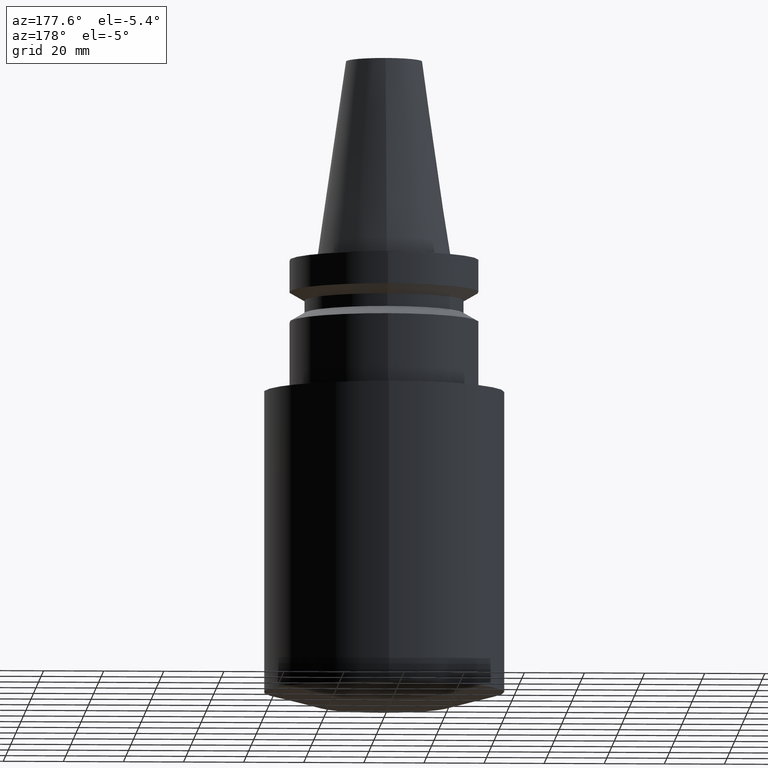
[diagram: clean part render]
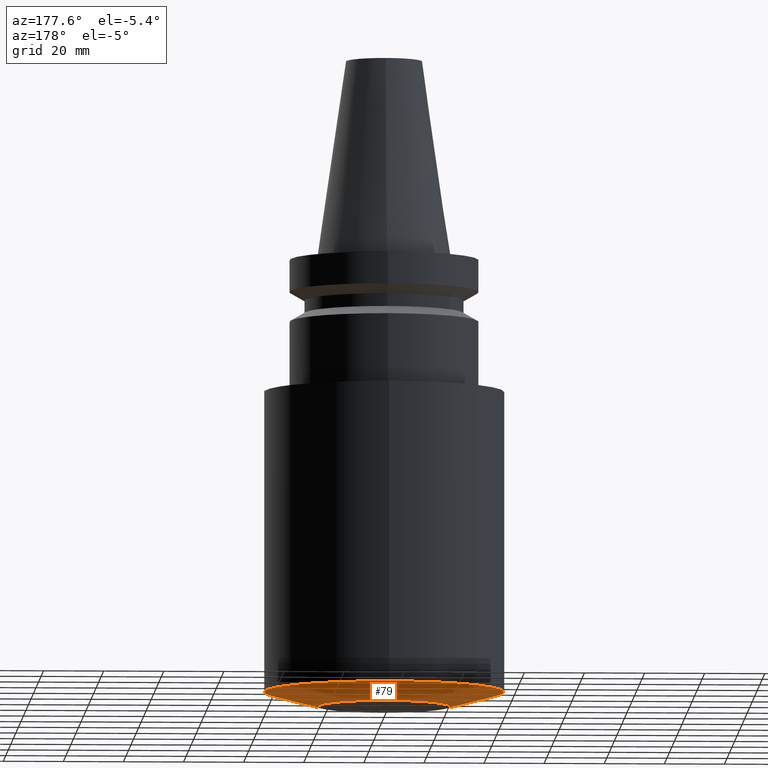
[diagram: same view with one face highlighted and labeled with its STEP entity id]
A machine part, auxiliary view. The second image highlights one B-rep face of the part: STEP entity #79.
In plain terms, the highlighted conical surface has half-angle 75 deg.
Its self-contained STEP definition (entity closure, byte-faithful):
#79=ADVANCED_FACE('',(#101,#102),#103,.T.);
#101=FACE_BOUND('',#138,.T.);
#102=FACE_BOUND('',#139,.T.);
#103=CONICAL_SURFACE('',#140,31.0,1.3089969388311);
#138=EDGE_LOOP('',(#183));
#139=EDGE_LOOP('',(#184));
#140=AXIS2_PLACEMENT_3D('',#185,#186,#187);
#183=ORIENTED_EDGE('',*,*,#231,.F.);
#184=ORIENTED_EDGE('',*,*,#230,.T.);
#185=CARTESIAN_POINT('',(9.03718658912769E-015,1.80743731782554E-014,-147.588457266532));
#186=DIRECTION('',(-6.12323399573677E-017,-1.22464679914735E-016,1.0));
#187=DIRECTION('',(-1.23259516440783E-032,1.0,1.22464679914735E-016));
#230=EDGE_CURVE('',#246,#246,#247,.T.);
#231=EDGE_CURVE('',#248,#248,#249,.T.);
#246=VERTEX_POINT('',#270);
#247=CIRCLE('',#271,40.0);
#248=VERTEX_POINT('',#272);
#249=CIRCLE('',#273,22.0);
#270=CARTESIAN_POINT('',(8.88952218465024E-015,40.0,-145.176914533063));
#271=AXIS2_PLACEMENT_3D('',#298,#299,#300);
#272=CARTESIAN_POINT('',(9.18485099360515E-015,22.0,-150.0));
#273=AXIS2_PLACEMENT_3D('',#301,#302,#303);
#298=CARTESIAN_POINT('',(8.88952218465024E-015,1.77790443693005E-014,-145.176914533063));
#299=DIRECTION('',(6.12323399573677E-017,1.22464679914735E-016,-1.0));
#300=DIRECTION('',(-1.23259516440783E-032,1.0,1.22464679914735E-016));
#301=CARTESIAN_POINT('',(9.18485099360515E-015,1.83697019872103E-014,-150.0));
#302=DIRECTION('',(6.12323399573677E-017,1.22464679914735E-016,-1.0));
#303=DIRECTION('',(-1.23259516440783E-032,1.0,1.22464679914735E-016));